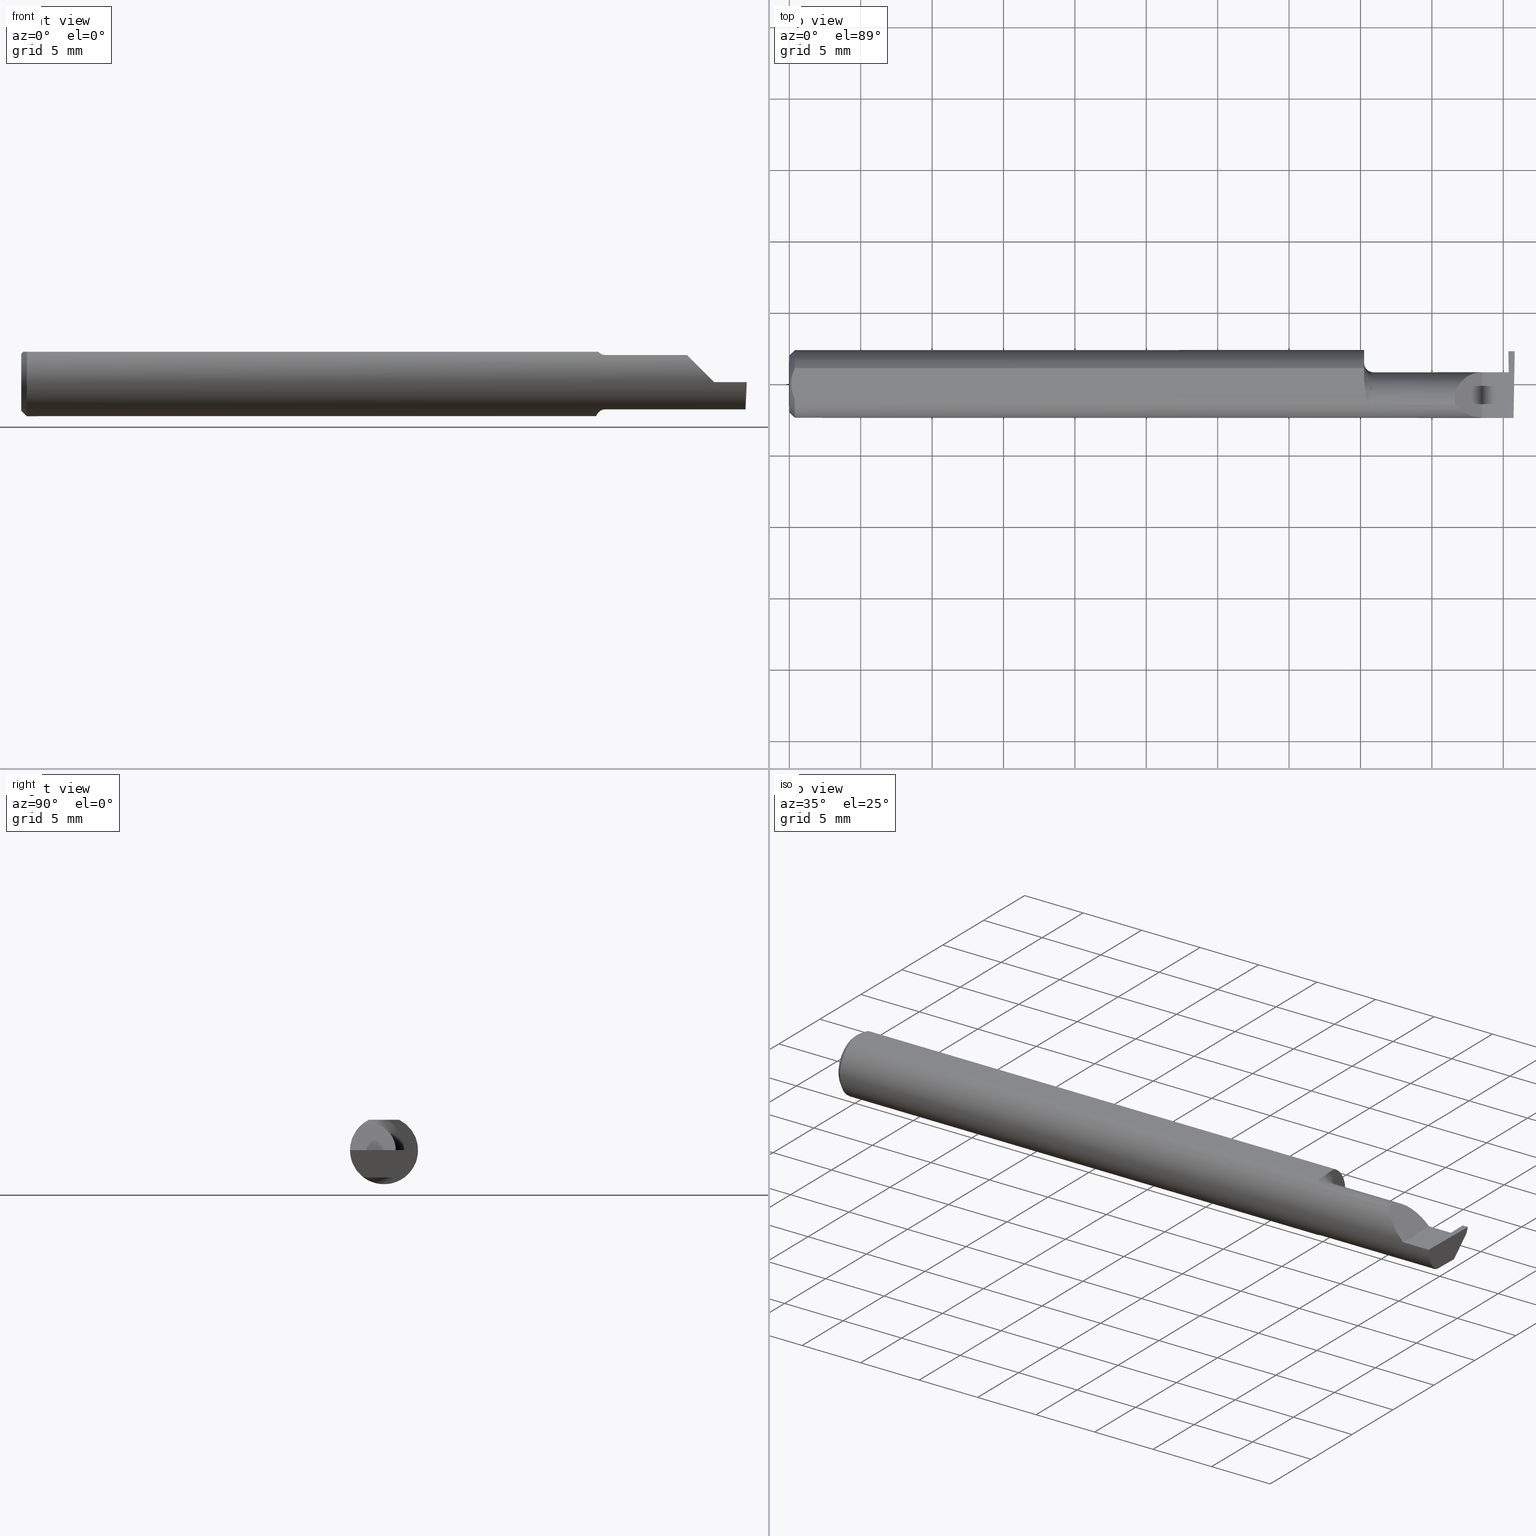
[diagram: canonical four-view strip — front | top / right | iso, engineering-drawing reading convention]
A machine part, canonical four-view strip (front | top / right | iso — engineering-drawing reading convention). The complete STEP part file that produces these views, byte-faithful:
ISO-10303-21;
HEADER;
FILE_DESCRIPTION (( 'STEP AP203' ),
    '1' );
FILE_NAME ('220647-GT017K-6.STEP',
    '2024-07-08T18:10:43',
    ( '' ),
    ( '' ),
    'SwSTEP 2.0',
    'SolidWorks 2024',
    '' );
FILE_SCHEMA (( 'CONFIG_CONTROL_DESIGN' ));
ENDSEC;

DATA;
#1 = VECTOR ( 'NONE', #663, 39.37007874015748143 ) ;
#2 = LOCAL_TIME ( 11, 10, 43.00000000000000000, #144 ) ;
#3 = VERTEX_POINT ( 'NONE', #636 ) ;
#4 = CARTESIAN_POINT ( 'NONE',  ( 1.584999999999999520, -0.09375000000000001388, 0.08375000000000000500 ) ) ;
#5 = FACE_OUTER_BOUND ( 'NONE', #364, .T. ) ;
#6 = FACE_OUTER_BOUND ( 'NONE', #377, .T. ) ;
#7 = VECTOR ( 'NONE', #419, 39.37007874015748143 ) ;
#8 = ORIENTED_EDGE ( 'NONE', *, *, #335, .F. ) ;
#9 = APPROVAL ( #465, 'UNSPECIFIED' ) ;
#10 = DIRECTION ( 'NONE',  ( 0.9991492024194463806, -2.513476157016391319E-05, 0.04124161336354301849 ) ) ;
#11 = LINE ( 'NONE', #225, #552 ) ;
#12 = VERTEX_POINT ( 'NONE', #17 ) ;
#13 = CARTESIAN_POINT ( 'NONE',  ( 1.995546448166315878, -0.05323839212197382237, -0.07444895739054079031 ) ) ;
#14 = CARTESIAN_POINT ( 'NONE',  ( 1.983284083932824293, 0.02979487577554267366, -0.01903262984222201318 ) ) ;
#15 = VERTEX_POINT ( 'NONE', #341 ) ;
#16 = LINE ( 'NONE', #233, #490 ) ;
#17 = CARTESIAN_POINT ( 'NONE',  ( 1.609999999999999654, -0.05838157894736842324, 0.07335293954308978737 ) ) ;
#18 = COORDINATED_UNIVERSAL_TIME_OFFSET ( 8, 0, .BEHIND. ) ;
#19 = ORIENTED_EDGE ( 'NONE', *, *, #245, .T. ) ;
#20 = VECTOR ( 'NONE', #621, 39.37007874015748143 ) ;
#21 = CARTESIAN_POINT ( 'NONE',  ( 1.985956086143513488, 0.03229268712522397056, -0.07004187842369792583 ) ) ;
#22 = DIRECTION ( 'NONE',  ( 1.000000000000000000, 0.000000000000000000, -0.000000000000000000 ) ) ;
#23 = EDGE_CURVE ( 'NONE', #622, #12, #557, .T. ) ;
#24 = ORIENTED_EDGE ( 'NONE', *, *, #230, .F. ) ;
#25 = DIRECTION ( 'NONE',  ( 0.01744642479411314534, 0.9998477995484629233, -2.135106780035503491E-18 ) ) ;
#26 = LINE ( 'NONE', #198, #267 ) ;
#27 = ORIENTED_EDGE ( 'NONE', *, *, #428, .T. ) ;
#28 = DIRECTION ( 'NONE',  ( -1.000000000000000000, -0.000000000000000000, -0.000000000000000000 ) ) ;
#29 = EDGE_CURVE ( 'NONE', #326, #15, #595, .T. ) ;
#30 = ORIENTED_EDGE ( 'NONE', *, *, #626, .T. ) ;
#31 = DIRECTION ( 'NONE',  ( 0.000000000000000000, -0.7071067811865484609, -0.7071067811865465735 ) ) ;
#32 = AXIS2_PLACEMENT_3D ( 'NONE', #526, #519, #479 ) ;
#33 = CARTESIAN_POINT ( 'NONE',  ( 0.01499999999999999944, 1.148106374200643863E-17, 0.09375000000000001388 ) ) ;
#34 = ORIENTED_EDGE ( 'NONE', *, *, #411, .F. ) ;
#35 = APPROVAL_STATUS ( 'not_yet_approved' ) ;
#36 = CARTESIAN_POINT ( 'NONE',  ( 1.983284083932824293, 0.03226159854786905812, -0.01903112649442139856 ) ) ;
#37 = CARTESIAN_POINT ( 'NONE',  ( 1.999906583493247902, 0.08920513411407893223, -0.002870745427926570548 ) ) ;
#38 = MECHANICAL_CONTEXT ( 'NONE', #328, 'mechanical' ) ;
#39 = AXIS2_PLACEMENT_3D ( 'NONE', #353, #559, #22 ) ;
#40 = CARTESIAN_POINT ( 'NONE',  ( 1.598207558315201782, -0.05325480917215880128, -0.07718836402619501380 ) ) ;
#41 = AXIS2_PLACEMENT_3D ( 'NONE', #229, #640, #482 ) ;
#42 = APPROVAL_PERSON_ORGANIZATION ( #155, #168, #202 ) ;
#43 = AXIS2_PLACEMENT_3D ( 'NONE', #194, #406, #342 ) ;
#44 = EDGE_CURVE ( 'NONE', #3, #217, #224, .T. ) ;
#45 = PERSON_AND_ORGANIZATION ( #634, #314 ) ;
#46 = EDGE_CURVE ( 'NONE', #157, #307, #514, .T. ) ;
#47 = ORIENTED_EDGE ( 'NONE', *, *, #590, .T. ) ;
#48 = DATE_AND_TIME ( #316, #575 ) ;
#49 = CARTESIAN_POINT ( 'NONE',  ( 0.01203593375173300090, 0.03553506238379953996, 0.08375000000000000500 ) ) ;
#50 = DIRECTION ( 'NONE',  ( 0.000000000000000000, -1.000000000000000000, 0.000000000000000000 ) ) ;
#51 = EDGE_CURVE ( 'NONE', #15, #388, #481, .T. ) ;
#52 = CIRCLE ( 'NONE', #108, 0.07499999999999999722 ) ;
#53 = VECTOR ( 'NONE', #413, 39.37007874015748854 ) ;
#54 = VECTOR ( 'NONE', #582, 39.37007874015748143 ) ;
#55 = ORIENTED_EDGE ( 'NONE', *, *, #265, .T. ) ;
#56 = DIRECTION ( 'NONE',  ( 0.000000000000000000, -1.000000000000000000, 0.000000000000000000 ) ) ;
#57 = ORIENTED_EDGE ( 'NONE', *, *, #383, .T. ) ;
#58 = DIRECTION ( 'NONE',  ( 1.000000000000000000, 0.000000000000000000, 0.000000000000000000 ) ) ;
#59 = EDGE_LOOP ( 'NONE', ( #237, #117, #658 ) ) ;
#60 = CARTESIAN_POINT ( 'NONE',  ( 1.983284083932825625, -1.951918181121707896, -0.02024038776255239827 ) ) ;
#61 = CIRCLE ( 'NONE', #203, 0.07875000000000001443 ) ;
#62 = EDGE_CURVE ( 'NONE', #592, #355, #169, .T. ) ;
#63 = ORIENTED_EDGE ( 'NONE', *, *, #110, .F. ) ;
#64 = CYLINDRICAL_SURFACE ( 'NONE', #516, 0.09375000000000001388 ) ;
#65 = CARTESIAN_POINT ( 'NONE',  ( 0.01499999999999999944, 0.000000000000000000, -0.09375000000000001388 ) ) ;
#66 = CYLINDRICAL_SURFACE ( 'NONE', #166, 0.07499999999999999722 ) ;
#67 = VERTEX_POINT ( 'NONE', #543 ) ;
#68 = CARTESIAN_POINT ( 'NONE',  ( 1.988744671832483935, 0.03234136206948449999, -0.1499086886162006860 ) ) ;
#69 = DIRECTION ( 'NONE',  ( -1.000000000000000000, -0.000000000000000000, -0.000000000000000000 ) ) ;
#70 = UNCERTAINTY_MEASURE_WITH_UNIT (LENGTH_MEASURE( 1.000000000000000082E-05 ), #628, 'distance_accuracy_value', 'NONE');
#71 = EDGE_LOOP ( 'NONE', ( #336, #232, #586, #30, #109, #563, #537, #438, #24, #139, #344, #199, #392 ) ) ;
#72 = DIRECTION ( 'NONE',  ( -1.000000000000000000, 2.147679240302093876E-17, -0.000000000000000000 ) ) ;
#73 = PLANE ( 'NONE',  #39 ) ;
#74 = VERTEX_POINT ( 'NONE', #432 ) ;
#75 = VECTOR ( 'NONE', #77, 39.37007874015748143 ) ;
#76 = CARTESIAN_POINT ( 'NONE',  ( 1.899999999999999911, 0.09024999999999999689, -4.102566777143687330E-19 ) ) ;
#77 = DIRECTION ( 'NONE',  ( -1.000000000000000000, -1.574165331271661086E-15, 1.224646799147358877E-16 ) ) ;
#78 =( BOUNDED_CURVE ( )  B_SPLINE_CURVE ( 3, ( #14, #603, #518, #546 ),
 .UNSPECIFIED., .F., .F. ) 
 B_SPLINE_CURVE_WITH_KNOTS ( ( 4, 4 ),
 ( 4.455205321888866088, 4.711308219781929374 ),
 .UNSPECIFIED. ) 
 CURVE ( )  GEOMETRIC_REPRESENTATION_ITEM ( )  RATIONAL_B_SPLINE_CURVE ( ( 1.000000000000000000, 0.9945417399294781413, 0.9945417399294781413, 1.000000000000000000 ) ) 
 REPRESENTATION_ITEM ( '' )  );
#79 = ORIENTED_EDGE ( 'NONE', *, *, #284, .F. ) ;
#80 = CARTESIAN_POINT ( 'NONE',  ( 1.854748759155722571, -0.08112527369187338966, 0.05525124084427806420 ) ) ;
#81 = FACE_OUTER_BOUND ( 'NONE', #534, .T. ) ;
#82 = EDGE_CURVE ( 'NONE', #326, #74, #449, .T. ) ;
#83 = EDGE_LOOP ( 'NONE', ( #467, #645, #154, #63, #79 ) ) ;
#84 = ADVANCED_FACE ( 'NONE', ( #5 ), #66, .T. ) ;
#85 = DIRECTION ( 'NONE',  ( 0.02617296143184116158, -0.0004568507411563393905, 0.9996573249755575929 ) ) ;
#86 = EDGE_LOOP ( 'NONE', ( #553, #584, #412, #269 ) ) ;
#87 = EDGE_CURVE ( 'NONE', #639, #136, #276, .T. ) ;
#88 = VECTOR ( 'NONE', #126, 39.37007874015748854 ) ;
#89 = PLANE ( 'NONE',  #660 ) ;
#90 = VECTOR ( 'NONE', #123, 39.37007874015748143 ) ;
#91 = VERTEX_POINT ( 'NONE', #495 ) ;
#92 = EDGE_CURVE ( 'NONE', #474, #91, #11, .T. ) ;
#93 = PERSON_AND_ORGANIZATION ( #634, #314 ) ;
#94 = DIRECTION ( 'NONE',  ( 2.147679240302093876E-17, 1.000000000000000000, 0.000000000000000000 ) ) ;
#95 = ORIENTED_EDGE ( 'NONE', *, *, #51, .T. ) ;
#96 = COORDINATED_UNIVERSAL_TIME_OFFSET ( 8, 0, .BEHIND. ) ;
#97 = LINE ( 'NONE', #4, #460 ) ;
#98 = APPROVAL_DATE_TIME ( #101, #168 ) ;
#99 = CARTESIAN_POINT ( 'NONE',  ( 1.584999999999999520, -0.007211988304093602635, -0.09347218690445632805 ) ) ;
#100 = CC_DESIGN_APPROVAL ( #9, ( #193 ) ) ;
#101 = DATE_AND_TIME ( #568, #291 ) ;
#102 = LINE ( 'NONE', #528, #313 ) ;
#103 = EDGE_CURVE ( 'NONE', #307, #457, #78, .T. ) ;
#104 = EDGE_CURVE ( 'NONE', #434, #388, #214, .T. ) ;
#105 = CARTESIAN_POINT ( 'NONE',  ( 1.982499999999999929, -0.04275000000000001021, 0.000000000000000000 ) ) ;
#106 = ORIENTED_EDGE ( 'NONE', *, *, #245, .F. ) ;
#107 = CARTESIAN_POINT ( 'NONE',  ( 1.995715029210241465, -0.04275000000000006573, -0.07500000000000002498 ) ) ;
#108 = AXIS2_PLACEMENT_3D ( 'NONE', #105, #579, #50 ) ;
#109 = ORIENTED_EDGE ( 'NONE', *, *, #265, .F. ) ;
#110 = EDGE_CURVE ( 'NONE', #132, #496, #131, .T. ) ;
#111 = PLANE ( 'NONE',  #41 ) ;
#112 = ORIENTED_EDGE ( 'NONE', *, *, #110, .T. ) ;
#113 = FACE_OUTER_BOUND ( 'NONE', #59, .T. ) ;
#114 = CARTESIAN_POINT ( 'NONE',  ( 1.590999686877564434, -0.04213074886538892977, 0.08375000000000000500 ) ) ;
#115 = CARTESIAN_POINT ( 'NONE',  ( 1.986213402547462925, -0.04275000000000001021, -0.07499999999999999722 ) ) ;
#116 = EDGE_CURVE ( 'NONE', #530, #177, #410, .T. ) ;
#117 = ORIENTED_EDGE ( 'NONE', *, *, #206, .T. ) ;
#118 = FACE_OUTER_BOUND ( 'NONE', #567, .T. ) ;
#119 = CALENDAR_DATE ( 2024, 8, 7 ) ;
#120 = AXIS2_PLACEMENT_3D ( 'NONE', #295, #28, #618 ) ;
#121 = ORIENTED_EDGE ( 'NONE', *, *, #456, .F. ) ;
#122 = LINE ( 'NONE', #337, #189 ) ;
#123 = DIRECTION ( 'NONE',  ( 1.000000000000000000, -2.147679240302093876E-17, 0.000000000000000000 ) ) ;
#124 = CARTESIAN_POINT ( 'NONE',  ( 1.986214534726834069, -0.007284900077140337923, -0.07499999999999999722 ) ) ;
#125 = ORIENTED_EDGE ( 'NONE', *, *, #187, .F. ) ;
#126 = DIRECTION ( 'NONE',  ( -7.219510806010323641E-16, 0.9999998142845092364, 0.0006094513490878470654 ) ) ;
#127 = ORIENTED_EDGE ( 'NONE', *, *, #565, .F. ) ;
#128 = CARTESIAN_POINT ( 'NONE',  ( 1.995715029210241465, -0.04275000000000006573, -0.07500000000000002498 ) ) ;
#129 = ORIENTED_EDGE ( 'NONE', *, *, #253, .F. ) ;
#130 = DIRECTION ( 'NONE',  ( 1.000000000000000000, 0.000000000000000000, 0.000000000000000000 ) ) ;
#131 = LINE ( 'NONE', #613, #259 ) ;
#132 = VERTEX_POINT ( 'NONE', #357 ) ;
#133 = CARTESIAN_POINT ( 'NONE',  ( 1.590999686877564434, -0.04213074886538892977, 0.08375000000000000500 ) ) ;
#134 = DIRECTION ( 'NONE',  ( 0.03490478697967554916, 0.000000000000000000, -0.9993906422645267851 ) ) ;
#135 = CC_DESIGN_DATE_AND_TIME_ASSIGNMENT ( #669, #150, ( #642 ) ) ;
#136 = VERTEX_POINT ( 'NONE', #128 ) ;
#137 = CARTESIAN_POINT ( 'NONE',  ( 1.836647060456910729, -0.05838157894736844405, 0.07335293954308981512 ) ) ;
#138 = CARTESIAN_POINT ( 'NONE',  ( 0.01499999999999999944, 0.000000000000000000, 0.000000000000000000 ) ) ;
#139 = ORIENTED_EDGE ( 'NONE', *, *, #62, .F. ) ;
#140 = CARTESIAN_POINT ( 'NONE',  ( 1.910000000000000142, 0.03224999999999999395, 1.102182119232621301E-17 ) ) ;
#141 = DIRECTION ( 'NONE',  ( 0.7071067811865476838, 8.659560562354930393E-17, 0.7071067811865473507 ) ) ;
#142 = VERTEX_POINT ( 'NONE', #657 ) ;
#143 = VECTOR ( 'NONE', #665, 39.37007874015748143 ) ;
#144 = COORDINATED_UNIVERSAL_TIME_OFFSET ( 8, 0, .BEHIND. ) ;
#145 = AXIS2_PLACEMENT_3D ( 'NONE', #605, #356, #178 ) ;
#146 = LOCAL_TIME ( 11, 10, 43.00000000000000000, #96 ) ;
#147 = CARTESIAN_POINT ( 'NONE',  ( 1.796249999999999680, -0.05838157894736843712, 0.07335293954308980124 ) ) ;
#148 = VECTOR ( 'NONE', #591, 39.37007874015748854 ) ;
#149 = ORIENTED_EDGE ( 'NONE', *, *, #321, .T. ) ;
#150 = DATE_TIME_ROLE ( 'creation_date' ) ;
#151 = APPLICATION_CONTEXT ( 'configuration controlled 3d designs of mechanical parts and assemblies' ) ;
#152 = EDGE_CURVE ( 'NONE', #74, #434, #661, .T. ) ;
#153 = CARTESIAN_POINT ( 'NONE',  ( 1.600060066263265135, -0.05494027375950292363, -0.07598188839406208595 ) ) ;
#154 = ORIENTED_EDGE ( 'NONE', *, *, #666, .T. ) ;
#155 = PERSON_AND_ORGANIZATION ( #634, #314 ) ;
#156 = CARTESIAN_POINT ( 'NONE',  ( 0.01500000000000000291, 0.04213074886588177859, 0.08375000000000000500 ) ) ;
#157 = VERTEX_POINT ( 'NONE', #301 ) ;
#158 = LINE ( 'NONE', #425, #435 ) ;
#159 = ADVANCED_FACE ( 'NONE', ( #606 ), #346, .F. ) ;
#160 = CARTESIAN_POINT ( 'NONE',  ( 1.584999999999999520, -0.007211988304093602635, -0.09347218690445632805 ) ) ;
#161 = ORIENTED_EDGE ( 'NONE', *, *, #367, .F. ) ;
#162 = DIRECTION ( 'NONE',  ( -2.147679240302093568E-17, -1.000000000000000000, 0.000000000000000000 ) ) ;
#163 = DIRECTION ( 'NONE',  ( -0.7071067811865459074, 0.000000000000000000, 0.7071067811865490160 ) ) ;
#164 = CARTESIAN_POINT ( 'NONE',  ( 1.607575688152824256, -0.05838157894736861059, 0.07335293954308967634 ) ) ;
#165 = TOROIDAL_SURFACE ( 'NONE', #630, 0.09999999999999999167, 0.02500000000000007425 ) ;
#166 = AXIS2_PLACEMENT_3D ( 'NONE', #285, #532, #381 ) ;
#167 = CARTESIAN_POINT ( 'NONE',  ( 1.995485408891350287, -0.05838157894736844405, -0.07335293954308980124 ) ) ;
#168 = APPROVAL ( #35, 'UNSPECIFIED' ) ;
#169 = LINE ( 'NONE', #338, #54 ) ;
#170 = ORIENTED_EDGE ( 'NONE', *, *, #104, .T. ) ;
#171 = DIRECTION ( 'NONE',  ( -1.000000000000000000, 2.147679240302093876E-17, -0.000000000000000000 ) ) ;
#172 =( BOUNDED_CURVE ( )  B_SPLINE_CURVE ( 3, ( #246, #558, #300, #503 ),
 .UNSPECIFIED., .F., .T. ) 
 B_SPLINE_CURVE_WITH_KNOTS ( ( 4, 4 ),
 ( 0.08452019423454062985, 0.9826237902196911511 ),
 .UNSPECIFIED. ) 
 CURVE ( )  GEOMETRIC_REPRESENTATION_ITEM ( )  RATIONAL_B_SPLINE_CURVE ( ( 1.000000000000000000, 0.9339060884622309988, 0.9339060884622309988, 1.000000000000000000 ) ) 
 REPRESENTATION_ITEM ( '' )  );
#173 = ORIENTED_EDGE ( 'NONE', *, *, #464, .T. ) ;
#174 = CARTESIAN_POINT ( 'NONE',  ( 0.01499999999999999944, -0.04213074886588177859, 0.08375000000000000500 ) ) ;
#175 = ORIENTED_EDGE ( 'NONE', *, *, #116, .T. ) ;
#176 = CIRCLE ( 'NONE', #529, 0.09999999999999999167 ) ;
#177 = VERTEX_POINT ( 'NONE', #611 ) ;
#178 = DIRECTION ( 'NONE',  ( 0.05230942393460007167, 0.000000000000000000, -0.9986309249005010935 ) ) ;
#179 = FACE_OUTER_BOUND ( 'NONE', #489, .T. ) ;
#180 =( BOUNDED_CURVE ( )  B_SPLINE_CURVE ( 3, ( #340, #510, #80, #405 ),
 .UNSPECIFIED., .F., .T. ) 
 B_SPLINE_CURVE_WITH_KNOTS ( ( 4, 4 ),
 ( 4.712388980384689674, 5.610949583684183395 ),
 .UNSPECIFIED. ) 
 CURVE ( )  GEOMETRIC_REPRESENTATION_ITEM ( )  RATIONAL_B_SPLINE_CURVE ( ( 1.000000000000000000, 0.9338399420684103669, 0.9338399420684103669, 1.000000000000000000 ) ) 
 REPRESENTATION_ITEM ( '' )  );
#181 = ORIENTED_EDGE ( 'NONE', *, *, #206, .F. ) ;
#182 = CARTESIAN_POINT ( 'NONE',  ( 1.996681322863967711, -0.09994209213532713465, 4.064207332045267881E-19 ) ) ;
#183 = CARTESIAN_POINT ( 'NONE',  ( 0.000000000000000000, 0.000000000000000000, 0.000000000000000000 ) ) ;
#184 = ADVANCED_FACE ( 'NONE', ( #81 ), #73, .T. ) ;
#185 = ORIENTED_EDGE ( 'NONE', *, *, #44, .T. ) ;
#186 = CARTESIAN_POINT ( 'NONE',  ( 1.999381723781206599, 0.08333456554894212720, -0.01900000000000000300 ) ) ;
#187 = EDGE_CURVE ( 'NONE', #530, #597, #290, .T. ) ;
#188 = CARTESIAN_POINT ( 'NONE',  ( 0.01206040376844791373, -0.03558951344700203578, 0.08375000000000000500 ) ) ;
#189 = VECTOR ( 'NONE', #58, 39.37007874015748143 ) ;
#190 = ORIENTED_EDGE ( 'NONE', *, *, #310, .T. ) ;
#191 = AXIS2_PLACEMENT_3D ( 'NONE', #294, #130, #250 ) ;
#192 = CARTESIAN_POINT ( 'NONE',  ( 1.825885935949168148, -0.007883793785045336081, 0.08411406405083239612 ) ) ;
#193 = PRODUCT_DEFINITION_FORMATION_WITH_SPECIFIED_SOURCE ( 'ANY', '', #608, .NOT_KNOWN. ) ;
#194 = CARTESIAN_POINT ( 'NONE',  ( 2.000000000000000000, 0.05624999999999997363, -0.07500000000000002498 ) ) ;
#195 = EDGE_CURVE ( 'NONE', #136, #157, #26, .T. ) ;
#196 = VERTEX_POINT ( 'NONE', #243 ) ;
#197 = FACE_OUTER_BOUND ( 'NONE', #83, .T. ) ;
#198 = CARTESIAN_POINT ( 'NONE',  ( 2.000000000000000000, -0.04275000000000005879, -0.07500000000000002498 ) ) ;
#199 = ORIENTED_EDGE ( 'NONE', *, *, #310, .F. ) ;
#200 = CARTESIAN_POINT ( 'NONE',  ( 1.585324359334076672, -0.01810271085742279698, -0.09214472197636142115 ) ) ;
#201 = ADVANCED_FACE ( 'NONE', ( #561 ), #89, .F. ) ;
#202 = APPROVAL_ROLE ( '' ) ;
#203 = AXIS2_PLACEMENT_3D ( 'NONE', #523, #427, #372 ) ;
#204 = CARTESIAN_POINT ( 'NONE',  ( 0.01500000000000000291, 0.04213074886588177859, 0.08375000000000000500 ) ) ;
#205 = DIRECTION ( 'NONE',  ( 3.192376091675779053E-05, 0.9999999994904366085, 0.000000000000000000 ) ) ;
#206 = EDGE_CURVE ( 'NONE', #457, #196, #515, .T. ) ;
#207 = PERSON_AND_ORGANIZATION_ROLE ( 'design_owner' ) ;
#208 = LINE ( 'NONE', #318, #7 ) ;
#209 = CC_DESIGN_PERSON_AND_ORGANIZATION_ASSIGNMENT ( #45, #210, ( #236 ) ) ;
#210 = PERSON_AND_ORGANIZATION_ROLE ( 'classification_officer' ) ;
#211 = CIRCLE ( 'NONE', #334, 0.09375000000000001388 ) ;
#212 = LINE ( 'NONE', #315, #426 ) ;
#213 = ADVANCED_FACE ( 'NONE', ( #508 ), #522, .T. ) ;
#214 = B_SPLINE_CURVE_WITH_KNOTS ( 'NONE', 3,
 ( #498, #350, #251, #247, #188, #653 ),
 .UNSPECIFIED., .F., .F.,
 ( 4, 2, 4 ),
 ( 0.002619103696509847423, 0.003168653518337010908, 0.003718203340164174392 ),
 .UNSPECIFIED. ) ;
#215 = ORIENTED_EDGE ( 'NONE', *, *, #82, .T. ) ;
#216 = LINE ( 'NONE', #484, #583 ) ;
#217 = VERTEX_POINT ( 'NONE', #649 ) ;
#218 = DIRECTION ( 'NONE',  ( 0.000000000000000000, 0.000000000000000000, 1.000000000000000000 ) ) ;
#219 = ADVANCED_FACE ( 'NONE', ( #179 ), #599, .F. ) ;
#220 = ORIENTED_EDGE ( 'NONE', *, *, #373, .T. ) ;
#221 = DIRECTION ( 'NONE',  ( -1.000000000000000000, -0.000000000000000000, -0.000000000000000000 ) ) ;
#222 = ORIENTED_EDGE ( 'NONE', *, *, #152, .T. ) ;
#223 = FACE_OUTER_BOUND ( 'NONE', #71, .T. ) ;
#224 = LINE ( 'NONE', #641, #90 ) ;
#225 = CARTESIAN_POINT ( 'NONE',  ( 2.999519565323743132E-32, -0.09375000000000001388, 2.449293598294717754E-16 ) ) ;
#226 = DESIGN_CONTEXT ( 'detailed design', #151, 'design' ) ;
#227 = ORIENTED_EDGE ( 'NONE', *, *, #347, .T. ) ;
#228 = EDGE_CURVE ( 'NONE', #142, #217, #551, .T. ) ;
#229 = CARTESIAN_POINT ( 'NONE',  ( 1.899999999999999911, 0.09024999999999999689, -4.102566777143687330E-19 ) ) ;
#230 = EDGE_CURVE ( 'NONE', #355, #15, #368, .T. ) ;
#231 = APPROVAL_ROLE ( '' ) ;
#232 = ORIENTED_EDGE ( 'NONE', *, *, #664, .T. ) ;
#233 = CARTESIAN_POINT ( 'NONE',  ( 1.988744671832483935, 0.03234136206948449999, -0.1499086886162006860 ) ) ;
#234 = SHAPE_DEFINITION_REPRESENTATION ( #404, #476 ) ;
#235 = VECTOR ( 'NONE', #72, 39.37007874015748143 ) ;
#236 = SECURITY_CLASSIFICATION ( '', '', #264 ) ;
#237 = ORIENTED_EDGE ( 'NONE', *, *, #103, .T. ) ;
#238 = DIRECTION ( 'NONE',  ( -0.03489418134011375294, -0.0006090802009084601322, 0.9993908270190957621 ) ) ;
#239 = DIRECTION ( 'NONE',  ( -1.000000000000000000, -0.000000000000000000, -0.000000000000000000 ) ) ;
#240 = EDGE_CURVE ( 'NONE', #217, #457, #52, .T. ) ;
#241 = ORIENTED_EDGE ( 'NONE', *, *, #240, .T. ) ;
#242 = DIRECTION ( 'NONE',  ( 0.000000000000000000, 0.0006094513490878167078, -0.9999998142845092364 ) ) ;
#243 = CARTESIAN_POINT ( 'NONE',  ( 1.983284083932824293, 0.03226159854787072345, -0.01903112649442140550 ) ) ;
#244 = EDGE_LOOP ( 'NONE', ( #282, #423, #286, #627, #509, #278, #615 ) ) ;
#245 = EDGE_CURVE ( 'NONE', #74, #326, #61, .T. ) ;
#246 = CARTESIAN_POINT ( 'NONE',  ( 1.995485408891350287, -0.05838157894736844405, -0.07335293954308980124 ) ) ;
#247 = CARTESIAN_POINT ( 'NONE',  ( 0.009538666466586609091, -0.02877983096038006991, 0.08375000000000000500 ) ) ;
#248 = AXIS2_PLACEMENT_3D ( 'NONE', #183, #555, #511 ) ;
#249 = ORIENTED_EDGE ( 'NONE', *, *, #590, .F. ) ;
#250 = DIRECTION ( 'NONE',  ( 0.000000000000000000, 0.000000000000000000, -1.000000000000000000 ) ) ;
#251 = CARTESIAN_POINT ( 'NONE',  ( 0.005974781316946024302, -0.01454917911307036273, 0.08375000000000000500 ) ) ;
#252 = DIRECTION ( 'NONE',  ( 0.000000000000000000, 0.000000000000000000, -1.000000000000000000 ) ) ;
#253 = EDGE_CURVE ( 'NONE', #355, #434, #473, .T. ) ;
#254 = EDGE_LOOP ( 'NONE', ( #408, #181, #332, #348, #127 ) ) ;
#255 = CALENDAR_DATE ( 2024, 8, 7 ) ;
#256 = DIRECTION ( 'NONE',  ( -0.03056411404777942264, -0.3418603543644915255, -0.9392536042231929283 ) ) ;
#257 = CARTESIAN_POINT ( 'NONE',  ( 0.000000000000000000, 0.000000000000000000, 0.000000000000000000 ) ) ;
#258 = CARTESIAN_POINT ( 'NONE',  ( 1.609999999999999654, -0.05838157894736840936, -0.07335293954308978737 ) ) ;
#259 = VECTOR ( 'NONE', #459, 39.37007874015748854 ) ;
#260 = EDGE_CURVE ( 'NONE', #91, #3, #208, .T. ) ;
#261 = PERSON_AND_ORGANIZATION ( #634, #314 ) ;
#262 = CC_DESIGN_PERSON_AND_ORGANIZATION_ASSIGNMENT ( #520, #624, ( #642 ) ) ;
#263 = ORIENTED_EDGE ( 'NONE', *, *, #92, .F. ) ;
#264 = SECURITY_CLASSIFICATION_LEVEL ( 'unclassified' ) ;
#265 = EDGE_CURVE ( 'NONE', #12, #453, #668, .T. ) ;
#266 = LINE ( 'NONE', #37, #646 ) ;
#267 = VECTOR ( 'NONE', #239, 39.37007874015748143 ) ;
#268 = DIRECTION ( 'NONE',  ( -0.9995051766793262571, 0.01744044634007060890, 0.02617694830739122208 ) ) ;
#269 = ORIENTED_EDGE ( 'NONE', *, *, #284, .T. ) ;
#270 = CARTESIAN_POINT ( 'NONE',  ( 1.589466124758072141, -0.02405869458993413826, 0.08374999999999999112 ) ) ;
#271 = VERTEX_POINT ( 'NONE', #258 ) ;
#272 = CARTESIAN_POINT ( 'NONE',  ( 0.004999999999999999237, 1.027057032872127190E-17, 0.08375000000000000500 ) ) ;
#273 = EDGE_LOOP ( 'NONE', ( #654, #323, #292 ) ) ;
#274 = CARTESIAN_POINT ( 'NONE',  ( 1.584999999999999964, 0.007433949980506041402, 0.08375000000000000500 ) ) ;
#275 = VECTOR ( 'NONE', #25, 39.37007874015748854 ) ;
#276 = LINE ( 'NONE', #281, #148 ) ;
#277 = CC_DESIGN_SECURITY_CLASSIFICATION ( #236, ( #193 ) ) ;
#278 = ORIENTED_EDGE ( 'NONE', *, *, #664, .F. ) ;
#279 = PRODUCT_RELATED_PRODUCT_CATEGORY ( 'detail', '', ( #608 ) ) ;
#280 = CARTESIAN_POINT ( 'NONE',  ( 2.000000000000000444, 0.09024999999999998301, -3.388131789017201356E-17 ) ) ;
#281 = CARTESIAN_POINT ( 'NONE',  ( 1.997443266634556291, 0.05629461264644371882, -0.07500000000000002498 ) ) ;
#282 = ORIENTED_EDGE ( 'NONE', *, *, #456, .T. ) ;
#283 = CARTESIAN_POINT ( 'NONE',  ( 1.899999999999999911, 0.08333456554894212720, -0.01899999999999999953 ) ) ;
#284 = EDGE_CURVE ( 'NONE', #157, #132, #158, .T. ) ;
#285 = CARTESIAN_POINT ( 'NONE',  ( 1.584999999999999964, -0.04275000000000000328, 0.000000000000000000 ) ) ;
#286 = ORIENTED_EDGE ( 'NONE', *, *, #373, .F. ) ;
#287 = CARTESIAN_POINT ( 'NONE',  ( 1.994172072281005459, -0.09370431490906530603, -0.09996576130738767108 ) ) ;
#288 = CARTESIAN_POINT ( 'NONE',  ( 1.592739023925776598, -0.04611560730424160010, 0.08174540214768907798 ) ) ;
#289 = ADVANCED_FACE ( 'NONE', ( #422 ), #317, .F. ) ;
#290 = LINE ( 'NONE', #394, #143 ) ;
#291 = LOCAL_TIME ( 11, 10, 43.00000000000000000, #571 ) ;
#292 = ORIENTED_EDGE ( 'NONE', *, *, #260, .T. ) ;
#293 = CLOSED_SHELL ( 'NONE', ( #213, #441, #184, #289, #471, #527, #219, #433, #329, #84, #159, #485, #415, #607, #201, #616, #477, #396 ) ) ;
#294 = CARTESIAN_POINT ( 'NONE',  ( 0.01499999999999999944, 0.000000000000000000, 0.000000000000000000 ) ) ;
#295 = CARTESIAN_POINT ( 'NONE',  ( 0.01499999999999999944, 0.000000000000000000, 0.000000000000000000 ) ) ;
#296 = ORIENTED_EDGE ( 'NONE', *, *, #464, .F. ) ;
#297 = CARTESIAN_POINT ( 'NONE',  ( 1.584999999999999520, 0.000000000000000000, 0.000000000000000000 ) ) ;
#298 = DIRECTION ( 'NONE',  ( 0.04124162102275089753, 0.0006089328293546878617, -0.9991490168619618917 ) ) ;
#299 = ORIENTED_EDGE ( 'NONE', *, *, #428, .F. ) ;
#300 = CARTESIAN_POINT ( 'NONE',  ( 1.996027606133761179, -0.09373671316968848477, -0.02909498180803899575 ) ) ;
#301 = CARTESIAN_POINT ( 'NONE',  ( 1.986213402547462925, -0.04275000000000001021, -0.07499999999999999722 ) ) ;
#302 = CIRCLE ( 'NONE', #32, 0.07499999999999999722 ) ;
#303 = APPROVAL_PERSON_ORGANIZATION ( #312, #9, #308 ) ;
#304 = CARTESIAN_POINT ( 'NONE',  ( 1.987734127201016943, 0.09034136203013630462, -0.1499086240528643976 ) ) ;
#305 = APPROVAL_STATUS ( 'not_yet_approved' ) ;
#306 = DIRECTION ( 'NONE',  ( -1.000000000000000000, 0.000000000000000000, 1.224646799147358877E-16 ) ) ;
#307 = VERTEX_POINT ( 'NONE', #629 ) ;
#308 = APPROVAL_ROLE ( '' ) ;
#309 = DIRECTION ( 'NONE',  ( -1.224646799147358877E-16, 0.000000000000000000, -1.000000000000000000 ) ) ;
#310 = EDGE_CURVE ( 'NONE', #271, #311, #576, .T. ) ;
#311 = VERTEX_POINT ( 'NONE', #99 ) ;
#312 = PERSON_AND_ORGANIZATION ( #634, #314 ) ;
#313 = VECTOR ( 'NONE', #670, 39.37007874015748143 ) ;
#314 = ORGANIZATION ( 'UNSPECIFIED', 'UNSPECIFIED', '' ) ;
#315 = CARTESIAN_POINT ( 'NONE',  ( 0.000000000000000000, -0.04213074886588177859, 0.08375000000000000500 ) ) ;
#316 = CALENDAR_DATE ( 2024, 8, 7 ) ;
#317 = PLANE ( 'NONE',  #550 ) ;
#318 = CARTESIAN_POINT ( 'NONE',  ( 1.910000000000000142, -0.1000000000000000056, 1.102182119232621301E-17 ) ) ;
#319 = ORIENTED_EDGE ( 'NONE', *, *, #488, .T. ) ;
#320 = DIRECTION ( 'NONE',  ( 0.01742050049977865098, -0.9998482515673751125, -2.130797594925076716E-18 ) ) ;
#321 = EDGE_CURVE ( 'NONE', #496, #530, #102, .T. ) ;
#322 = CC_DESIGN_APPROVAL ( #407, ( #236 ) ) ;
#323 = ORIENTED_EDGE ( 'NONE', *, *, #626, .F. ) ;
#324 = CARTESIAN_POINT ( 'NONE',  ( 1.585353981402313428, 0.002977777744037073734, 0.08375000000000003275 ) ) ;
#325 = CARTESIAN_POINT ( 'NONE',  ( 0.01499999999999999944, 0.000000000000000000, 0.000000000000000000 ) ) ;
#326 = VERTEX_POINT ( 'NONE', #466 ) ;
#327 = PLANE ( 'NONE',  #416 ) ;
#328 = APPLICATION_CONTEXT ( 'configuration controlled 3d designs of mechanical parts and assemblies' ) ;
#329 = ADVANCED_FACE ( 'NONE', ( #414 ), #363, .T. ) ;
#330 = CARTESIAN_POINT ( 'NONE',  ( 0.000000000000000000, 0.000000000000000000, 0.000000000000000000 ) ) ;
#331 = CC_DESIGN_PERSON_AND_ORGANIZATION_ASSIGNMENT ( #261, #417, ( #193 ) ) ;
#332 = ORIENTED_EDGE ( 'NONE', *, *, #240, .F. ) ;
#333 = DIRECTION ( 'NONE',  ( 2.147679240302093876E-17, 1.000000000000000000, 0.000000000000000000 ) ) ;
#334 = AXIS2_PLACEMENT_3D ( 'NONE', #297, #462, #659 ) ;
#335 = EDGE_CURVE ( 'NONE', #12, #271, #302, .T. ) ;
#336 = ORIENTED_EDGE ( 'NONE', *, *, #655, .T. ) ;
#337 = CARTESIAN_POINT ( 'NONE',  ( 2.000000000000000000, 0.02733456554894195603, -0.07500000000000002498 ) ) ;
#338 = CARTESIAN_POINT ( 'NONE',  ( 0.000000000000000000, 0.04213074886588177859, 0.08375000000000000500 ) ) ;
#339 = EDGE_LOOP ( 'NONE', ( #106, #222, #129, #651, #395 ) ) ;
#340 = CARTESIAN_POINT ( 'NONE',  ( 1.910000000000000142, -0.09375000000000001388, 1.102182119232621301E-17 ) ) ;
#341 = CARTESIAN_POINT ( 'NONE',  ( 0.01499999999999999944, 0.000000000000000000, -0.09375000000000001388 ) ) ;
#342 = DIRECTION ( 'NONE',  ( 1.000000000000000000, 0.000000000000000000, 0.000000000000000000 ) ) ;
#343 = DATE_AND_TIME ( #119, #620 ) ;
#344 = ORIENTED_EDGE ( 'NONE', *, *, #488, .F. ) ;
#345 = PLANE ( 'NONE',  #391 ) ;
#346 = PLANE ( 'NONE',  #43 ) ;
#347 = EDGE_CURVE ( 'NONE', #461, #597, #266, .T. ) ;
#348 = ORIENTED_EDGE ( 'NONE', *, *, #228, .F. ) ;
#349 = VECTOR ( 'NONE', #463, 39.37007874015748854 ) ;
#350 = CARTESIAN_POINT ( 'NONE',  ( 0.004999999999999987094, -0.007334551313124574798, 0.08375000000000003275 ) ) ;
#351 = EDGE_LOOP ( 'NONE', ( #263, #580, #249, #27, #601, #632, #547 ) ) ;
#352 = CARTESIAN_POINT ( 'NONE',  ( 1.796249999999999680, -0.05838157894736843712, -0.07335293954308980124 ) ) ;
#353 = CARTESIAN_POINT ( 'NONE',  ( 2.000000000000000000, -0.09375000000000002776, 0.08375000000000000500 ) ) ;
#354 = EDGE_CURVE ( 'NONE', #388, #622, #212, .T. ) ;
#355 = VERTEX_POINT ( 'NONE', #204 ) ;
#356 = DIRECTION ( 'NONE',  ( 0.9986309243930279189, -3.188005489064874801E-05, 0.05230942390801804343 ) ) ;
#357 = CARTESIAN_POINT ( 'NONE',  ( 1.986215639910378528, 0.02733456554894142521, -0.07500000000000021927 ) ) ;
#358 = DATE_AND_TIME ( #362, #2 ) ;
#359 = AXIS2_PLACEMENT_3D ( 'NONE', #325, #596, #501 ) ;
#360 = CARTESIAN_POINT ( 'NONE',  ( 1.584999999999999520, 0.1322499999999999787, 0.000000000000000000 ) ) ;
#361 = ORIENTED_EDGE ( 'NONE', *, *, #354, .T. ) ;
#362 = CALENDAR_DATE ( 2024, 8, 7 ) ;
#363 = PLANE ( 'NONE',  #402 ) ;
#364 = EDGE_LOOP ( 'NONE', ( #121, #662, #8, #55, #570, #185, #241, #560, #506, #399 ) ) ;
#365 = LENGTH_MEASURE_WITH_UNIT ( LENGTH_MEASURE( 0.02539999999999999897 ), #667 );
#366 = CARTESIAN_POINT ( 'NONE',  ( 2.000000000000000000, -0.1000000000000000056, 0.000000000000000000 ) ) ;
#367 = EDGE_CURVE ( 'NONE', #67, #592, #97, .T. ) ;
#368 = CIRCLE ( 'NONE', #120, 0.09375000000000001388 ) ;
#369 = PERSON_AND_ORGANIZATION ( #634, #314 ) ;
#370 = CARTESIAN_POINT ( 'NONE',  ( 1.609999999999999654, -0.05838157894736840936, -0.07335293954308978737 ) ) ;
#371 =( BOUNDED_CURVE ( )  B_SPLINE_CURVE ( 3, ( #167, #13, #431, #107 ),
 .UNSPECIFIED., .F., .F. ) 
 B_SPLINE_CURVE_WITH_KNOTS ( ( 4, 4 ),
 ( 0.3777552489154321069, 0.5877155292608603476 ),
 .UNSPECIFIED. ) 
 CURVE ( )  GEOMETRIC_REPRESENTATION_ITEM ( )  RATIONAL_B_SPLINE_CURVE ( ( 1.000000000000000000, 0.9963297626697654730, 0.9963297626697654730, 1.000000000000000000 ) ) 
 REPRESENTATION_ITEM ( '' )  );
#372 = DIRECTION ( 'NONE',  ( 0.000000000000000000, 0.000000000000000000, 1.000000000000000000 ) ) ;
#373 = EDGE_CURVE ( 'NONE', #597, #639, #444, .T. ) ;
#374 = EDGE_LOOP ( 'NONE', ( #445, #382, #483, #299 ) ) ;
#375 = DIRECTION ( 'NONE',  ( 0.02618093032612054533, 0.000000000000000000, 0.9996572206948034500 ) ) ;
#376 = CARTESIAN_POINT ( 'NONE',  ( 1.983284083932824293, 0.02979487577554267366, -0.01903262984222201318 ) ) ;
#377 = EDGE_LOOP ( 'NONE', ( #47, #227, #125, #175 ) ) ;
#378 = VECTOR ( 'NONE', #141, 39.37007874015748143 ) ;
#379 = AXIS2_PLACEMENT_3D ( 'NONE', #138, #455, #252 ) ;
#380 = CARTESIAN_POINT ( 'NONE',  ( 1.996789369178486595, -0.09374999999634724135, 1.727064893179230389E-17 ) ) ;
#381 = DIRECTION ( 'NONE',  ( 0.000000000000000000, -1.000000000000000000, 0.000000000000000000 ) ) ;
#382 = ORIENTED_EDGE ( 'NONE', *, *, #321, .F. ) ;
#383 = EDGE_CURVE ( 'NONE', #622, #67, #614, .T. ) ;
#384 = CARTESIAN_POINT ( 'NONE',  ( 1.584999999999999520, -0.04275000000000000328, 0.000000000000000000 ) ) ;
#385 = CC_DESIGN_PERSON_AND_ORGANIZATION_ASSIGNMENT ( #369, #207, ( #608 ) ) ;
#386 = APPROVAL_DATE_TIME ( #343, #407 ) ;
#387 = DIRECTION ( 'NONE',  ( 0.04124161337657034077, 0.000000000000000000, -0.9991492027350556970 ) ) ;
#388 = VERTEX_POINT ( 'NONE', #174 ) ;
#389 = CARTESIAN_POINT ( 'NONE',  ( 1.997382703856816377, 0.09029568507411561695, -0.09996573249755572044 ) ) ;
#390 = CARTESIAN_POINT ( 'NONE',  ( 1.599466403312456819, -0.05436279821624136893, 0.07640134852137274446 ) ) ;
#391 = AXIS2_PLACEMENT_3D ( 'NONE', #68, #400, #242 ) ;
#392 = ORIENTED_EDGE ( 'NONE', *, *, #650, .F. ) ;
#393 = LINE ( 'NONE', #598, #88 ) ;
#394 = CARTESIAN_POINT ( 'NONE',  ( 1.899999999999999911, 0.08333456554894212720, -0.01899999999999999953 ) ) ;
#395 = ORIENTED_EDGE ( 'NONE', *, *, #29, .F. ) ;
#396 = ADVANCED_FACE ( 'NONE', ( #492 ), #594, .F. ) ;
#397 = CARTESIAN_POINT ( 'NONE',  ( 1.986215639910378528, 0.03229570701694661761, -0.07499697642507782702 ) ) ;
#398 = CARTESIAN_POINT ( 'NONE',  ( 1.999999999999999778, 0.03225000000000002864, 2.549510916572845000E-32 ) ) ;
#399 = ORIENTED_EDGE ( 'NONE', *, *, #195, .F. ) ;
#400 = DIRECTION ( 'NONE',  ( 1.574090402660384131E-15, -0.9999998142845093474, -0.0006094513490878168162 ) ) ;
#401 = CARTESIAN_POINT ( 'NONE',  ( 1.982376122940475494, 0.09134256630479128947, 0.003001801251671023553 ) ) ;
#402 = AXIS2_PLACEMENT_3D ( 'NONE', #360, #566, #94 ) ;
#403 = ORIENTED_EDGE ( 'NONE', *, *, #253, .T. ) ;
#404 = PRODUCT_DEFINITION_SHAPE ( 'NONE', 'NONE',  #642 ) ;
#405 = CARTESIAN_POINT ( 'NONE',  ( 1.836647060456910729, -0.05838157894736844405, 0.07335293954308981512 ) ) ;
#406 = DIRECTION ( 'NONE',  ( -0.000000000000000000, 0.000000000000000000, 1.000000000000000000 ) ) ;
#407 = APPROVAL ( #305, 'UNSPECIFIED' ) ;
#408 = ORIENTED_EDGE ( 'NONE', *, *, #666, .F. ) ;
#409 = CARTESIAN_POINT ( 'NONE',  ( 1.996788247257474058, -0.09374999020988993015, -4.284443422834860931E-05 ) ) ;
#410 = LINE ( 'NONE', #401, #349 ) ;
#411 = EDGE_CURVE ( 'NONE', #132, #639, #122, .T. ) ;
#412 = ORIENTED_EDGE ( 'NONE', *, *, #195, .T. ) ;
#413 = DIRECTION ( 'NONE',  ( 0.05230943362269017960, 0.0006086169641121960856, -0.9986307389317957695 ) ) ;
#414 = FACE_OUTER_BOUND ( 'NONE', #499, .T. ) ;
#415 = ADVANCED_FACE ( 'NONE', ( #6 ), #111, .F. ) ;
#416 = AXIS2_PLACEMENT_3D ( 'NONE', #60, #10, #387 ) ;
#417 = PERSON_AND_ORGANIZATION_ROLE ( 'design_supplier' ) ;
#418 =( BOUNDED_CURVE ( )  B_SPLINE_CURVE ( 3, ( #137, #192, #500, #140 ),
 .UNSPECIFIED., .F., .T. ) 
 B_SPLINE_CURVE_WITH_KNOTS ( ( 4, 4 ),
 ( 6.073225026834156992, 7.853981633974482790 ),
 .UNSPECIFIED. ) 
 CURVE ( )  GEOMETRIC_REPRESENTATION_ITEM ( )  RATIONAL_B_SPLINE_CURVE ( ( 1.000000000000000000, 0.7527453416837595057, 0.7527453416837595057, 1.000000000000000000 ) ) 
 REPRESENTATION_ITEM ( '' )  );
#419 = DIRECTION ( 'NONE',  ( -0.000000000000000000, 1.000000000000000000, -0.000000000000000000 ) ) ;
#420 = ORIENTED_EDGE ( 'NONE', *, *, #104, .F. ) ;
#421 = DIRECTION ( 'NONE',  ( 1.000000000000000000, 0.000000000000000000, 0.000000000000000000 ) ) ;
#422 = FACE_OUTER_BOUND ( 'NONE', #351, .T. ) ;
#423 = ORIENTED_EDGE ( 'NONE', *, *, #87, .F. ) ;
#424 = DIRECTION ( 'NONE',  ( 0.000000000000000000, 0.000000000000000000, 1.000000000000000000 ) ) ;
#425 = CARTESIAN_POINT ( 'NONE',  ( 1.986216563013842418, 0.05625044001914715486, -0.07500000000000002498 ) ) ;
#426 = VECTOR ( 'NONE', #569, 39.37007874015748143 ) ;
#427 = DIRECTION ( 'NONE',  ( -1.000000000000000000, -0.000000000000000000, -0.000000000000000000 ) ) ;
#428 = EDGE_CURVE ( 'NONE', #177, #142, #216, .T. ) ;
#429 = CARTESIAN_POINT ( 'NONE',  ( 1.999287184445666998, 0.08116816941191071222, -0.02116639613703141104 ) ) ;
#430 = ORIENTED_EDGE ( 'NONE', *, *, #23, .T. ) ;
#431 = CARTESIAN_POINT ( 'NONE',  ( 1.995623270227810497, -0.04800867149029529324, -0.07499999999999998335 ) ) ;
#432 = CARTESIAN_POINT ( 'NONE',  ( 0.000000000000000000, 1.056257864264592268E-17, 0.07875000000000001443 ) ) ;
#433 = ADVANCED_FACE ( 'NONE', ( #533 ), #165, .F. ) ;
#434 = VERTEX_POINT ( 'NONE', #272 ) ;
#435 = VECTOR ( 'NONE', #205, 39.37007874015748143 ) ;
#436 = CARTESIAN_POINT ( 'NONE',  ( 1.590999686877564434, -0.04213074886538892977, 0.08375000000000000500 ) ) ;
#437 =( GEOMETRIC_REPRESENTATION_CONTEXT ( 3 ) GLOBAL_UNCERTAINTY_ASSIGNED_CONTEXT ( ( #70 ) ) GLOBAL_UNIT_ASSIGNED_CONTEXT ( ( #628, #673, #671 ) ) REPRESENTATION_CONTEXT ( 'NONE', 'WORKASPACE' ) );
#438 = ORIENTED_EDGE ( 'NONE', *, *, #51, .F. ) ;
#439 = PLANE ( 'NONE',  #593 ) ;
#440 = CARTESIAN_POINT ( 'NONE',  ( 1.601220712553798720, -0.05572867853941683436, 0.07539872578566603201 ) ) ;
#441 = ADVANCED_FACE ( 'NONE', ( #223 ), #64, .T. ) ;
#442 = DIRECTION ( 'NONE',  ( -1.000000000000000000, -0.000000000000000000, -0.000000000000000000 ) ) ;
#443 = ORIENTED_EDGE ( 'NONE', *, *, #187, .T. ) ;
#444 = LINE ( 'NONE', #429, #470 ) ;
#445 = ORIENTED_EDGE ( 'NONE', *, *, #116, .F. ) ;
#446 = CARTESIAN_POINT ( 'NONE',  ( 1.584999999999999520, 0.04213074886588177859, 0.08375000000000000500 ) ) ;
#447 = AXIS2_PLACEMENT_3D ( 'NONE', #389, #268, #375 ) ;
#448 = CC_DESIGN_APPROVAL ( #168, ( #642 ) ) ;
#449 = CIRCLE ( 'NONE', #505, 0.07875000000000001443 ) ;
#450 = EDGE_LOOP ( 'NONE', ( #190, #296, #512, #430, #544 ) ) ;
#451 = LINE ( 'NONE', #182, #275 ) ;
#452 = DIRECTION ( 'NONE',  ( 0.9992391710281356421, 0.01740988840157115664, 0.03489949668475363781 ) ) ;
#453 = VERTEX_POINT ( 'NONE', #581 ) ;
#454 = CARTESIAN_POINT ( 'NONE',  ( 1.983284083932824293, 0.08333456554894212720, -0.01899999999999999606 ) ) ;
#455 = DIRECTION ( 'NONE',  ( 1.000000000000000000, 0.000000000000000000, 0.000000000000000000 ) ) ;
#456 = EDGE_CURVE ( 'NONE', #643, #136, #371, .T. ) ;
#457 = VERTEX_POINT ( 'NONE', #531 ) ;
#458 = PLANE ( 'NONE',  #637 ) ;
#459 = DIRECTION ( 'NONE',  ( -0.03699114979479755511, 0.7066228325057368753, 0.7066228325057349879 ) ) ;
#460 = VECTOR ( 'NONE', #333, 39.37007874015748143 ) ;
#461 = VERTEX_POINT ( 'NONE', #280 ) ;
#462 = DIRECTION ( 'NONE',  ( 1.000000000000000000, -2.147679240302093876E-17, 0.000000000000000000 ) ) ;
#463 = DIRECTION ( 'NONE',  ( -0.03874971116600877535, 0.3417632683796886228, 0.9389868626722014389 ) ) ;
#464 = EDGE_CURVE ( 'NONE', #67, #311, #176, .T. ) ;
#465 = APPROVAL_STATUS ( 'not_yet_approved' ) ;
#466 = CARTESIAN_POINT ( 'NONE',  ( 0.000000000000000000, 0.000000000000000000, -0.07875000000000001443 ) ) ;
#467 = ORIENTED_EDGE ( 'NONE', *, *, #46, .T. ) ;
#468 = PERSON_AND_ORGANIZATION ( #634, #314 ) ;
#469 = CARTESIAN_POINT ( 'NONE',  ( 0.004999999999999983624, 0.007314086538144515953, 0.08375000000000000500 ) ) ;
#470 = VECTOR ( 'NONE', #538, 39.37007874015748143 ) ;
#471 = ADVANCED_FACE ( 'NONE', ( #587 ), #439, .F. ) ;
#472 = CARTESIAN_POINT ( 'NONE',  ( 1.604549969027321721, -0.05752976837683124178, -0.07404057533005115044 ) ) ;
#473 = B_SPLINE_CURVE_WITH_KNOTS ( 'NONE', 3,
 ( #156, #49, #475, #672, #469, #674 ),
 .UNSPECIFIED., .F., .F.,
 ( 4, 2, 4 ),
 ( 0.001523070747180472508, 0.002071087221845159965, 0.002619103696509847423 ),
 .UNSPECIFIED. ) ;
#474 = VERTEX_POINT ( 'NONE', #380 ) ;
#475 = CARTESIAN_POINT ( 'NONE',  ( 0.009492087804616128680, 0.02861790513768985161, 0.08375000000000004663 ) ) ;
#476 = ADVANCED_BREP_SHAPE_REPRESENTATION ( '220647-GT017K-6', ( #600, #480 ), #437 ) ;
#477 = ADVANCED_FACE ( 'NONE', ( #113 ), #327, .F. ) ;
#478 = PERSON_AND_ORGANIZATION_ROLE ( 'creator' ) ;
#479 = DIRECTION ( 'NONE',  ( 0.000000000000000000, -1.000000000000000000, 0.000000000000000000 ) ) ;
#480 = AXIS2_PLACEMENT_3D ( 'NONE', #257, #424, #421 ) ;
#481 = CIRCLE ( 'NONE', #359, 0.09375000000000001388 ) ;
#482 = DIRECTION ( 'NONE',  ( 0.000000000000000000, -0.3420201433256696566, -0.9396926207859079838 ) ) ;
#483 = ORIENTED_EDGE ( 'NONE', *, *, #565, .T. ) ;
#484 = CARTESIAN_POINT ( 'NONE',  ( 1.985819058079965505, -0.1002470765992919816, 1.736664513126461507E-18 ) ) ;
#485 = ADVANCED_FACE ( 'NONE', ( #118 ), #458, .F. ) ;
#486 = EDGE_LOOP ( 'NONE', ( #609, #541, #612, #95, #420 ) ) ;
#487 = CARTESIAN_POINT ( 'NONE',  ( 1.586437499065390444, -0.005930736431437498395, 0.08375000000000000500 ) ) ;
#488 = EDGE_CURVE ( 'NONE', #311, #592, #211, .T. ) ;
#489 = EDGE_LOOP ( 'NONE', ( #215, #19 ) ) ;
#490 = VECTOR ( 'NONE', #238, 39.37007874015748854 ) ;
#491 = VECTOR ( 'NONE', #298, 39.37007874015748143 ) ;
#492 = FACE_OUTER_BOUND ( 'NONE', #244, .T. ) ;
#493 = CARTESIAN_POINT ( 'NONE',  ( 1.605240307031869040, -0.05773700189513420594, 0.07387213327103113458 ) ) ;
#494 = APPROVAL_PERSON_ORGANIZATION ( #93, #407, #231 ) ;
#495 = CARTESIAN_POINT ( 'NONE',  ( 1.910000000000000142, -0.09375000000000001388, 1.102182119232621301E-17 ) ) ;
#496 = VERTEX_POINT ( 'NONE', #21 ) ;
#497 = CARTESIAN_POINT ( 'NONE',  ( 1.590942578645229588, -0.03309847336431840509, 0.08375000000000000500 ) ) ;
#498 = CARTESIAN_POINT ( 'NONE',  ( 0.004999999999999999237, 1.027057032872127190E-17, 0.08375000000000000500 ) ) ;
#499 = EDGE_LOOP ( 'NONE', ( #319, #161, #173 ) ) ;
#500 = CARTESIAN_POINT ( 'NONE',  ( 1.858368342008306362, 0.03224999999999998701, 0.05163165799169417564 ) ) ;
#501 = DIRECTION ( 'NONE',  ( 0.000000000000000000, 0.000000000000000000, 1.000000000000000000 ) ) ;
#502 = VERTEX_POINT ( 'NONE', #409 ) ;
#503 = CARTESIAN_POINT ( 'NONE',  ( 1.996788247257474058, -0.09374999020988993015, -4.284443422834860931E-05 ) ) ;
#504 = CARTESIAN_POINT ( 'NONE',  ( 1.594909205099689586, -0.04978158779095854386, 0.07952688576918194585 ) ) ;
#505 = AXIS2_PLACEMENT_3D ( 'NONE', #330, #69, #536 ) ;
#506 = ORIENTED_EDGE ( 'NONE', *, *, #46, .F. ) ;
#507 = DIRECTION ( 'NONE',  ( 0.000000000000000000, -0.7071067811865465735, 0.7071067811865484609 ) ) ;
#508 = FACE_OUTER_BOUND ( 'NONE', #339, .T. ) ;
#509 = ORIENTED_EDGE ( 'NONE', *, *, #573, .F. ) ;
#510 = CARTESIAN_POINT ( 'NONE',  ( 1.880932025416039766, -0.09375000000000002776, 0.02906797458396062975 ) ) ;
#511 = DIRECTION ( 'NONE',  ( 0.000000000000000000, 0.000000000000000000, -1.000000000000000000 ) ) ;
#512 = ORIENTED_EDGE ( 'NONE', *, *, #383, .F. ) ;
#513 = LINE ( 'NONE', #397, #53 ) ;
#514 =( BOUNDED_CURVE ( )  B_SPLINE_CURVE ( 3, ( #115, #124, #539, #376 ),
 .UNSPECIFIED., .F., .F. ) 
 B_SPLINE_CURVE_WITH_KNOTS ( ( 4, 4 ),
 ( 3.140983202202991542, 4.455205321888862535 ),
 .UNSPECIFIED. ) 
 CURVE ( )  GEOMETRIC_REPRESENTATION_ITEM ( )  RATIONAL_B_SPLINE_CURVE ( ( 1.000000000000000000, 0.8611734602017913076, 0.8611734602017913076, 1.000000000000000000 ) ) 
 REPRESENTATION_ITEM ( '' )  );
#515 = LINE ( 'NONE', #36, #491 ) ;
#516 = AXIS2_PLACEMENT_3D ( 'NONE', #535, #221, #218 ) ;
#517 = APPLICATION_PROTOCOL_DEFINITION ( 'international standard', 'config_control_design', 1994, #328 ) ;
#518 = CARTESIAN_POINT ( 'NONE',  ( 1.982765001967077279, 0.03224696580267935597, -0.006455479666460811096 ) ) ;
#519 = DIRECTION ( 'NONE',  ( -1.000000000000000000, 2.147679240302093876E-17, -0.000000000000000000 ) ) ;
#520 = PERSON_AND_ORGANIZATION ( #634, #314 ) ;
#521 = CARTESIAN_POINT ( 'NONE',  ( 1.591215966499099022, -0.04318554456501045441, -0.08337622648642020740 ) ) ;
#522 = CONICAL_SURFACE ( 'NONE', #379, 0.09375000000000001388, 0.7853981633974480570 ) ;
#523 = CARTESIAN_POINT ( 'NONE',  ( 0.000000000000000000, 0.000000000000000000, 0.000000000000000000 ) ) ;
#524 = COORDINATED_UNIVERSAL_TIME_OFFSET ( 8, 0, .BEHIND. ) ;
#525 = CC_DESIGN_DATE_AND_TIME_ASSIGNMENT ( #358, #564, ( #236 ) ) ;
#526 = CARTESIAN_POINT ( 'NONE',  ( 1.609999999999999654, -0.04275000000000000328, 0.000000000000000000 ) ) ;
#527 = ADVANCED_FACE ( 'NONE', ( #602 ), #562, .T. ) ;
#528 = CARTESIAN_POINT ( 'NONE',  ( 1.983170122559407833, 0.08551151081629013162, -0.01682305473265199164 ) ) ;
#529 = AXIS2_PLACEMENT_3D ( 'NONE', #384, #588, #56 ) ;
#530 = VERTEX_POINT ( 'NONE', #454 ) ;
#531 = CARTESIAN_POINT ( 'NONE',  ( 1.982499999999999929, 0.03224999167003562289, -3.534818988850987187E-05 ) ) ;
#532 = DIRECTION ( 'NONE',  ( -1.000000000000000000, 2.147679240302093876E-17, -0.000000000000000000 ) ) ;
#533 = FACE_OUTER_BOUND ( 'NONE', #450, .T. ) ;
#534 = EDGE_LOOP ( 'NONE', ( #361, #57, #556, #604, #403, #170 ) ) ;
#535 = CARTESIAN_POINT ( 'NONE',  ( 0.000000000000000000, 0.000000000000000000, 0.000000000000000000 ) ) ;
#536 = DIRECTION ( 'NONE',  ( 0.000000000000000000, 0.000000000000000000, 1.000000000000000000 ) ) ;
#537 = ORIENTED_EDGE ( 'NONE', *, *, #354, .F. ) ;
#538 = DIRECTION ( 'NONE',  ( -0.03084274406794415904, -0.7067703747110379853, -0.7067703747110360979 ) ) ;
#539 = CARTESIAN_POINT ( 'NONE',  ( 1.985080687037213298, 0.02079495418688683678, -0.05333678008583637997 ) ) ;
#540 = EDGE_CURVE ( 'NONE', #453, #3, #418, .T. ) ;
#541 = ORIENTED_EDGE ( 'NONE', *, *, #82, .F. ) ;
#542 = CARTESIAN_POINT ( 'NONE',  ( 1.584999999999999520, 0.01189373248598594654, 0.08375000000000000500 ) ) ;
#543 = CARTESIAN_POINT ( 'NONE',  ( 1.584999999999999520, 0.01189373248598594654, 0.08375000000000000500 ) ) ;
#544 = ORIENTED_EDGE ( 'NONE', *, *, #335, .T. ) ;
#545 = PLANE ( 'NONE',  #145 ) ;
#546 = CARTESIAN_POINT ( 'NONE',  ( 1.982499999999999929, 0.03224999167003562289, -3.534818988850987187E-05 ) ) ;
#547 = ORIENTED_EDGE ( 'NONE', *, *, #260, .F. ) ;
#548 = DIMENSIONAL_EXPONENTS ( 1.000000000000000000, 0.000000000000000000, 0.000000000000000000, 0.000000000000000000, 0.000000000000000000, 0.000000000000000000, 0.000000000000000000 ) ;
#549 = LINE ( 'NONE', #287, #619 ) ;
#550 = AXIS2_PLACEMENT_3D ( 'NONE', #366, #309, #306 ) ;
#551 = LINE ( 'NONE', #398, #75 ) ;
#552 = VECTOR ( 'NONE', #442, 39.37007874015748143 ) ;
#553 = ORIENTED_EDGE ( 'NONE', *, *, #411, .T. ) ;
#554 = CARTESIAN_POINT ( 'NONE',  ( 1.995485408891350287, -0.05838157894736844405, -0.07335293954308980124 ) ) ;
#555 = DIRECTION ( 'NONE',  ( 1.000000000000000000, 0.000000000000000000, 0.000000000000000000 ) ) ;
#556 = ORIENTED_EDGE ( 'NONE', *, *, #367, .T. ) ;
#557 = B_SPLINE_CURVE_WITH_KNOTS ( 'NONE', 3,
 ( #114, #288, #504, #390, #440, #493, #164, #638 ),
 .UNSPECIFIED., .F., .F.,
 ( 4, 2, 2, 4 ),
 ( 4.737345209427644843E-07, 0.0003622503278351656944, 0.0005431386244922773105, 0.0007240269211493888723 ),
 .UNSPECIFIED. ) ;
#558 = CARTESIAN_POINT ( 'NONE',  ( 1.995562592080699416, -0.08111288453585545344, -0.05526110136922310345 ) ) ;
#559 = DIRECTION ( 'NONE',  ( 0.000000000000000000, -0.000000000000000000, 1.000000000000000000 ) ) ;
#560 = ORIENTED_EDGE ( 'NONE', *, *, #103, .F. ) ;
#561 = FACE_OUTER_BOUND ( 'NONE', #374, .T. ) ;
#562 = CONICAL_SURFACE ( 'NONE', #191, 0.09375000000000001388, 0.7853981633974480570 ) ;
#563 = ORIENTED_EDGE ( 'NONE', *, *, #23, .F. ) ;
#564 = DATE_TIME_ROLE ( 'classification_date' ) ;
#565 = EDGE_CURVE ( 'NONE', #496, #142, #16, .T. ) ;
#566 = DIRECTION ( 'NONE',  ( 1.000000000000000000, -2.147679240302093876E-17, 0.000000000000000000 ) ) ;
#567 = EDGE_LOOP ( 'NONE', ( #443, #220, #34, #112, #149 ) ) ;
#568 = CALENDAR_DATE ( 2024, 8, 7 ) ;
#569 = DIRECTION ( 'NONE',  ( 1.000000000000000000, 0.000000000000000000, 0.000000000000000000 ) ) ;
#570 = ORIENTED_EDGE ( 'NONE', *, *, #540, .T. ) ;
#571 = COORDINATED_UNIVERSAL_TIME_OFFSET ( 8, 0, .BEHIND. ) ;
#572 = CARTESIAN_POINT ( 'NONE',  ( 1.584999999999999964, -0.01264328839833117439, -0.09305312671069305985 ) ) ;
#573 = EDGE_CURVE ( 'NONE', #474, #461, #451, .T. ) ;
#574 = CC_DESIGN_PERSON_AND_ORGANIZATION_ASSIGNMENT ( #468, #478, ( #193 ) ) ;
#575 = LOCAL_TIME ( 11, 10, 43.00000000000000000, #524 ) ;
#576 = B_SPLINE_CURVE_WITH_KNOTS ( 'NONE', 3,
 ( #370, #675, #472, #153, #40, #625, #521, #631, #578, #200, #572, #160 ),
 .UNSPECIFIED., .F., .F.,
 ( 4, 2, 2, 2, 2, 4 ),
 ( 1.968136730861365899E-07, 0.0002100635469676745198, 0.0004199302802622629409, 0.0008396637468514521431, 0.001259397213440641454, 0.001679130680029830656 ),
 .UNSPECIFIED. ) ;
#577 = APPLICATION_PROTOCOL_DEFINITION ( 'international standard', 'config_control_design', 1994, #151 ) ;
#578 = CARTESIAN_POINT ( 'NONE',  ( 1.586765681351157697, -0.02858678023888824860, -0.08944916949900594272 ) ) ;
#579 = DIRECTION ( 'NONE',  ( -1.000000000000000000, 2.147679240302093876E-17, -0.000000000000000000 ) ) ;
#580 = ORIENTED_EDGE ( 'NONE', *, *, #573, .T. ) ;
#581 = CARTESIAN_POINT ( 'NONE',  ( 1.836647060456910729, -0.05838157894736844405, 0.07335293954308981512 ) ) ;
#582 = DIRECTION ( 'NONE',  ( -1.000000000000000000, -0.000000000000000000, -0.000000000000000000 ) ) ;
#583 = VECTOR ( 'NONE', #320, 39.37007874015748854 ) ;
#584 = ORIENTED_EDGE ( 'NONE', *, *, #87, .T. ) ;
#585 = DIRECTION ( 'NONE',  ( -0.7071067811865491270, 0.000000000000000000, -0.7071067811865460184 ) ) ;
#586 = ORIENTED_EDGE ( 'NONE', *, *, #92, .T. ) ;
#587 = FACE_OUTER_BOUND ( 'NONE', #273, .T. ) ;
#588 = DIRECTION ( 'NONE',  ( -1.000000000000000000, 2.147679240302093876E-17, -0.000000000000000000 ) ) ;
#589 = DIRECTION ( 'NONE',  ( 0.7071067811865476838, 0.000000000000000000, -0.7071067811865473507 ) ) ;
#590 = EDGE_CURVE ( 'NONE', #177, #461, #656, .T. ) ;
#591 = DIRECTION ( 'NONE',  ( -0.01744642479411314534, -0.9998477995484629233, 0.000000000000000000 ) ) ;
#592 = VERTEX_POINT ( 'NONE', #446 ) ;
#593 = AXIS2_PLACEMENT_3D ( 'NONE', #635, #585, #163 ) ;
#594 = PLANE ( 'NONE',  #447 ) ;
#595 = LINE ( 'NONE', #65, #648 ) ;
#596 = DIRECTION ( 'NONE',  ( -1.000000000000000000, -0.000000000000000000, -0.000000000000000000 ) ) ;
#597 = VERTEX_POINT ( 'NONE', #186 ) ;
#598 = CARTESIAN_POINT ( 'NONE',  ( 1.983284083932825625, -1.951918181121707896, -0.02024038776255239827 ) ) ;
#599 = PLANE ( 'NONE',  #248 ) ;
#600 = MANIFOLD_SOLID_BREP ( 'Front Angle', #293 ) ;
#601 = ORIENTED_EDGE ( 'NONE', *, *, #228, .T. ) ;
#602 = FACE_OUTER_BOUND ( 'NONE', #486, .T. ) ;
#603 = CARTESIAN_POINT ( 'NONE',  ( 1.983027797685394722, 0.03142410243558824146, -0.01282266061342996789 ) ) ;
#604 = ORIENTED_EDGE ( 'NONE', *, *, #62, .T. ) ;
#605 = CARTESIAN_POINT ( 'NONE',  ( 1.986215639910380082, -1.951884072652630309, -0.07620623769320881979 ) ) ;
#606 = FACE_OUTER_BOUND ( 'NONE', #86, .T. ) ;
#607 = ADVANCED_FACE ( 'NONE', ( #647 ), #345, .F. ) ;
#608 = PRODUCT ( '220647-GT017K-6', '220647-GT017K-6', '', ( #38 ) ) ;
#609 = ORIENTED_EDGE ( 'NONE', *, *, #152, .F. ) ;
#610 = CARTESIAN_POINT ( 'NONE',  ( 1.996937940439960757, 0.02733456554894195256, -0.07500000000000002498 ) ) ;
#611 = CARTESIAN_POINT ( 'NONE',  ( 1.982499999999999929, 0.09024999999999999689, -4.102566777143687330E-19 ) ) ;
#612 = ORIENTED_EDGE ( 'NONE', *, *, #29, .T. ) ;
#613 = CARTESIAN_POINT ( 'NONE',  ( 1.983170122559407833, 0.08551151081629008999, -0.01682305473265205062 ) ) ;
#614 = B_SPLINE_CURVE_WITH_KNOTS ( 'NONE', 3,
 ( #436, #497, #270, #644, #487, #324, #274, #542 ),
 .UNSPECIFIED., .F., .F.,
 ( 4, 2, 2, 4 ),
 ( 0.009618651650252088917, 0.01029828715705081998, 0.01063810491045018465, 0.01097792266384954932 ),
 .UNSPECIFIED. ) ;
#615 = ORIENTED_EDGE ( 'NONE', *, *, #655, .F. ) ;
#616 = ADVANCED_FACE ( 'NONE', ( #197 ), #545, .F. ) ;
#617 = APPROVAL_DATE_TIME ( #48, #9 ) ;
#618 = DIRECTION ( 'NONE',  ( 0.000000000000000000, 0.000000000000000000, 1.000000000000000000 ) ) ;
#619 = VECTOR ( 'NONE', #85, 39.37007874015748854 ) ;
#620 = LOCAL_TIME ( 11, 10, 43.00000000000000000, #18 ) ;
#621 = DIRECTION ( 'NONE',  ( 1.000000000000000000, -2.147679240302093876E-17, 0.000000000000000000 ) ) ;
#622 = VERTEX_POINT ( 'NONE', #133 ) ;
#623 = EDGE_CURVE ( 'NONE', #307, #196, #393, .T. ) ;
#624 = PERSON_AND_ORGANIZATION_ROLE ( 'creator' ) ;
#625 = CARTESIAN_POINT ( 'NONE',  ( 1.593390868289649376, -0.04761230247806394478, -0.08088482006378601430 ) ) ;
#626 = EDGE_CURVE ( 'NONE', #91, #453, #180, .T. ) ;
#627 = ORIENTED_EDGE ( 'NONE', *, *, #347, .F. ) ;
#628 =( CONVERSION_BASED_UNIT ( 'INCH', #365 ) LENGTH_UNIT ( ) NAMED_UNIT ( #548 ) );
#629 = CARTESIAN_POINT ( 'NONE',  ( 1.983284083932824293, 0.02979487577554267366, -0.01903262984222201318 ) ) ;
#630 = AXIS2_PLACEMENT_3D ( 'NONE', #633, #171, #162 ) ;
#631 = CARTESIAN_POINT ( 'NONE',  ( 1.587861371264698951, -0.03361344351988228979, -0.08767395746301762105 ) ) ;
#632 = ORIENTED_EDGE ( 'NONE', *, *, #44, .F. ) ;
#633 = CARTESIAN_POINT ( 'NONE',  ( 1.609999999999999654, -0.04274999999999998940, 0.000000000000000000 ) ) ;
#634 = PERSON ( 'UNSPECIFIED', 'UNSPECIFIED', 'UNSPECIFIED', ('UNSPECIFIED'), ('UNSPECIFIED'), ('UNSPECIFIED') ) ;
#635 = CARTESIAN_POINT ( 'NONE',  ( 1.910000000000000142, -0.1000000000000000056, 1.102182119232621301E-17 ) ) ;
#636 = CARTESIAN_POINT ( 'NONE',  ( 1.910000000000000142, 0.03224999999999999395, 1.102182119232621301E-17 ) ) ;
#637 = AXIS2_PLACEMENT_3D ( 'NONE', #283, #507, #31 ) ;
#638 = CARTESIAN_POINT ( 'NONE',  ( 1.609999999999999654, -0.05838157894736842324, 0.07335293954308978737 ) ) ;
#639 = VERTEX_POINT ( 'NONE', #610 ) ;
#640 = DIRECTION ( 'NONE',  ( 0.000000000000000000, -0.9396926207859080948, 0.3420201433256697121 ) ) ;
#641 = CARTESIAN_POINT ( 'NONE',  ( 1.584999999999999964, 0.03224999999999999395, 5.082284216461540301E-17 ) ) ;
#642 = PRODUCT_DEFINITION ( 'UNKNOWN', '', #193, #226 ) ;
#643 = VERTEX_POINT ( 'NONE', #554 ) ;
#644 = CARTESIAN_POINT ( 'NONE',  ( 1.587189498114994546, -0.01049869895607574190, 0.08375000000000004663 ) ) ;
#645 = ORIENTED_EDGE ( 'NONE', *, *, #623, .T. ) ;
#646 = VECTOR ( 'NONE', #256, 39.37007874015748854 ) ;
#647 = FACE_OUTER_BOUND ( 'NONE', #254, .T. ) ;
#648 = VECTOR ( 'NONE', #589, 39.37007874015748143 ) ;
#649 = CARTESIAN_POINT ( 'NONE',  ( 1.982499999999999929, 0.03225000000000000783, 5.082285660060015392E-17 ) ) ;
#650 = EDGE_CURVE ( 'NONE', #643, #271, #652, .T. ) ;
#651 = ORIENTED_EDGE ( 'NONE', *, *, #230, .T. ) ;
#652 = LINE ( 'NONE', #352, #235 ) ;
#653 = CARTESIAN_POINT ( 'NONE',  ( 0.01499999999999999944, -0.04213074886588177859, 0.08375000000000000500 ) ) ;
#654 = ORIENTED_EDGE ( 'NONE', *, *, #540, .F. ) ;
#655 = EDGE_CURVE ( 'NONE', #643, #502, #172, .T. ) ;
#656 = LINE ( 'NONE', #76, #1 ) ;
#657 = CARTESIAN_POINT ( 'NONE',  ( 1.983510542377208807, 0.03225000000000000783, 9.546713055072177866E-18 ) ) ;
#658 = ORIENTED_EDGE ( 'NONE', *, *, #623, .F. ) ;
#659 = DIRECTION ( 'NONE',  ( 0.000000000000000000, 1.000000000000000000, 0.000000000000000000 ) ) ;
#660 = AXIS2_PLACEMENT_3D ( 'NONE', #304, #452, #134 ) ;
#661 = LINE ( 'NONE', #33, #378 ) ;
#662 = ORIENTED_EDGE ( 'NONE', *, *, #650, .T. ) ;
#663 = DIRECTION ( 'NONE',  ( 1.000000000000000000, -0.000000000000000000, -0.000000000000000000 ) ) ;
#664 = EDGE_CURVE ( 'NONE', #502, #474, #549, .T. ) ;
#665 = DIRECTION ( 'NONE',  ( 1.000000000000000000, -0.000000000000000000, -0.000000000000000000 ) ) ;
#666 = EDGE_CURVE ( 'NONE', #196, #496, #513, .T. ) ;
#667 =( LENGTH_UNIT ( ) NAMED_UNIT ( * ) SI_UNIT ( $, .METRE. ) );
#668 = LINE ( 'NONE', #147, #20 ) ;
#669 = DATE_AND_TIME ( #255, #146 ) ;
#670 = DIRECTION ( 'NONE',  ( -0.03699114979479856818, 0.7066228325057368753, 0.7066228325057349879 ) ) ;
#671 =( NAMED_UNIT ( * ) SI_UNIT ( $, .STERADIAN. ) SOLID_ANGLE_UNIT ( ) );
#672 = CARTESIAN_POINT ( 'NONE',  ( 0.005981604563668297542, 0.01455208735151375561, 0.08375000000000000500 ) ) ;
#673 =( NAMED_UNIT ( * ) PLANE_ANGLE_UNIT ( ) SI_UNIT ( $, .RADIAN. ) );
#674 = CARTESIAN_POINT ( 'NONE',  ( 0.004999999999999999237, 1.027057032872127190E-17, 0.08375000000000000500 ) ) ;
#675 = CARTESIAN_POINT ( 'NONE',  ( 1.607201432994826318, -0.05838157894736858283, -0.07335293954308967634 ) ) ;
ENDSEC;
END-ISO-10303-21;
